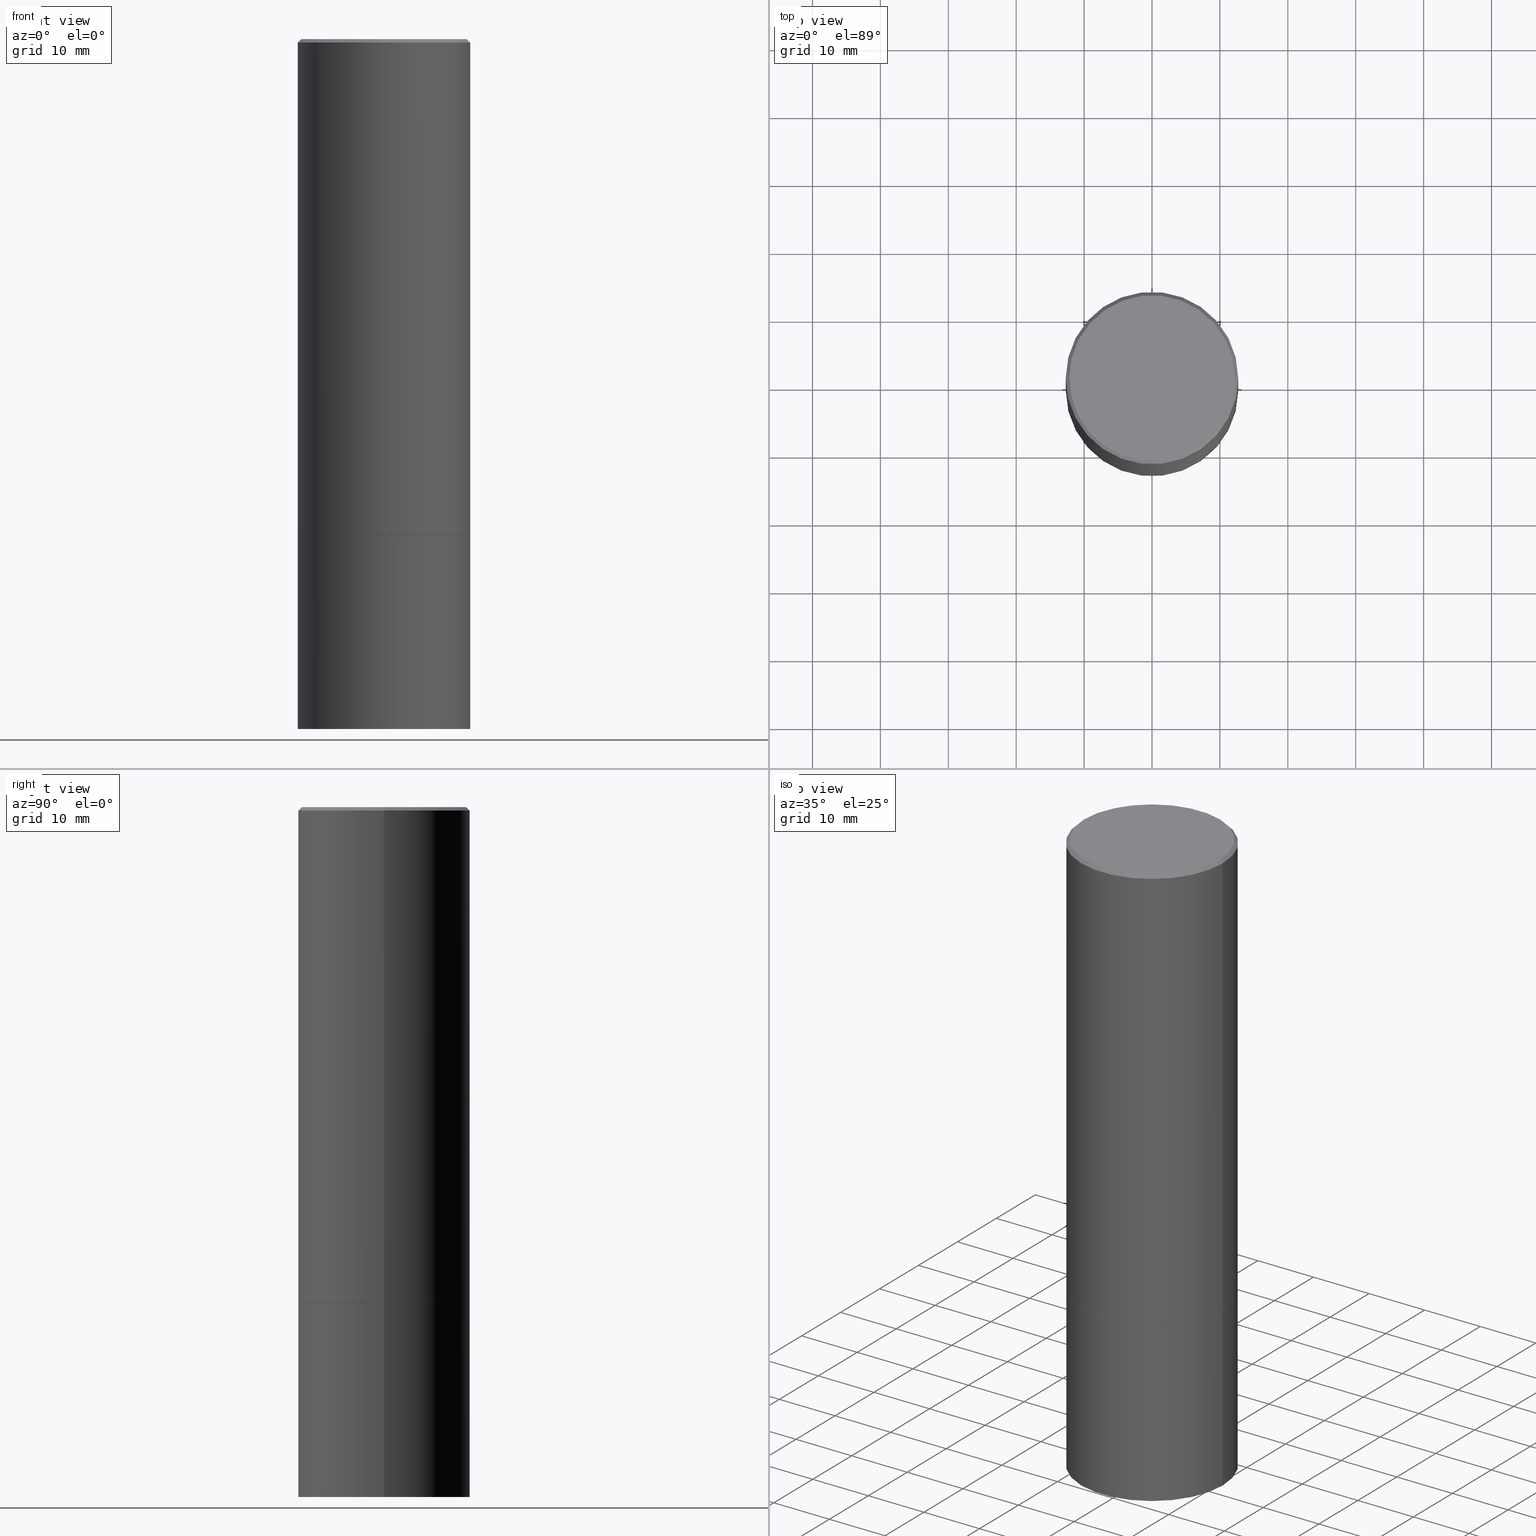
[diagram: canonical four-view strip — front | top / right | iso, engineering-drawing reading convention]
A machine part, canonical four-view strip (front | top / right | iso — engineering-drawing reading convention). The complete STEP part file that produces these views, byte-faithful:
ISO-10303-21;
HEADER;
FILE_DESCRIPTION (( 'STEP AP203' ),
    '1' );
FILE_NAME ('37288.STEP',
    '2024-02-27T21:10:12',
    ( '' ),
    ( '' ),
    'SwSTEP 2.0',
    'SolidWorks 2023',
    '' );
FILE_SCHEMA (( 'CONFIG_CONTROL_DESIGN' ));
ENDSEC;

DATA;
#1 = CARTESIAN_POINT ( 'NONE',  ( 0.4989999999999999991, -1.352250722533949203E-14, -2.875000000000000000 ) ) ;
#2 = PRODUCT_DEFINITION ( 'UNKNOWN', '', #365, #131 ) ;
#3 = AXIS2_PLACEMENT_3D ( 'NONE', #108, #102, #76 ) ;
#4 = MANIFOLD_SOLID_BREP ( 'Body-Move/Copy2[2]', #245 ) ;
#5 = CARTESIAN_POINT ( 'NONE',  ( 7.030722817782267716E-29, -1.003800884917404311E-14, -2.875000000000000000 ) ) ;
#6 = CARTESIAN_POINT ( 'NONE',  ( -0.5000000000000000000, -1.499459818505530375E-15, -2.874000000000000110 ) ) ;
#7 = COORDINATED_UNIVERSAL_TIME_OFFSET ( 5, 0, .BEHIND. ) ;
#8 = CARTESIAN_POINT ( 'NONE',  ( -0.5000000000000000000, 3.552713678800500929E-15, -2.459467545127452891E-29 ) ) ;
#9 = CC_DESIGN_PERSON_AND_ORGANIZATION_ASSIGNMENT ( #142, #62, ( #2 ) ) ;
#10 = FACE_OUTER_BOUND ( 'NONE', #211, .T. ) ;
#11 = CARTESIAN_POINT ( 'NONE',  ( 7.030722817782267716E-29, -1.003800884917404311E-14, -2.875000000000000000 ) ) ;
#12 = DIRECTION ( 'NONE',  ( 1.000000000000000000, -6.982962677686269077E-15, 0.000000000000000000 ) ) ;
#13 = VERTEX_POINT ( 'NONE', #309 ) ;
#14 = CARTESIAN_POINT ( 'NONE',  ( -3.131554243005659264E-46, 4.471029511141341874E-32, 1.280553747030123384E-17 ) ) ;
#15 = AXIS2_PLACEMENT_3D ( 'NONE', #179, #41, #42 ) ;
#16 = ORIENTED_EDGE ( 'NONE', *, *, #162, .F. ) ;
#17 = DIRECTION ( 'NONE',  ( 1.000000000000000000, -6.982962677686266711E-15, 0.000000000000000000 ) ) ;
#18 = ORIENTED_EDGE ( 'NONE', *, *, #326, .F. ) ;
#19 = DIRECTION ( 'NONE',  ( -2.445468806185136597E-29, 3.491481338843145583E-15, 1.000000000000000000 ) ) ;
#20 = EDGE_CURVE ( 'NONE', #55, #140, #256, .T. ) ;
#21 = LINE ( 'NONE', #75, #171 ) ;
#22 = ORIENTED_EDGE ( 'NONE', *, *, #272, .T. ) ;
#23 = DIRECTION ( 'NONE',  ( 2.445468806185136597E-29, -3.491481338843145583E-15, -1.000000000000000000 ) ) ;
#24 = SECURITY_CLASSIFICATION_LEVEL ( 'unclassified' ) ;
#25 = LINE ( 'NONE', #166, #220 ) ;
#26 = EDGE_CURVE ( 'NONE', #140, #33, #63, .T. ) ;
#27 = VERTEX_POINT ( 'NONE', #221 ) ;
#28 = ORIENTED_EDGE ( 'NONE', *, *, #20, .T. ) ;
#29 =( GEOMETRIC_REPRESENTATION_CONTEXT ( 3 ) GLOBAL_UNCERTAINTY_ASSIGNED_CONTEXT ( ( #355 ) ) GLOBAL_UNIT_ASSIGNED_CONTEXT ( ( #360, #357, #216 ) ) REPRESENTATION_CONTEXT ( 'NONE', 'WORKASPACE' ) );
#30 = DATE_AND_TIME ( #144, #134 ) ;
#31 = ADVANCED_FACE ( 'NONE', ( #332 ), #79, .T. ) ;
#32 = ORIENTED_EDGE ( 'NONE', *, *, #135, .F. ) ;
#33 = VERTEX_POINT ( 'NONE', #6 ) ;
#34 = CARTESIAN_POINT ( 'NONE',  ( 4.890937612370295054E-31, -6.982962677686322424E-17, -0.02000000000000009062 ) ) ;
#35 = CARTESIAN_POINT ( 'NONE',  ( 7.028277348976082113E-29, -1.003451736783520168E-14, -2.874000000000000110 ) ) ;
#36 = CARTESIAN_POINT ( 'NONE',  ( 0.4989999999999999991, -1.352250722533949203E-14, -2.875000000000000000 ) ) ;
#37 = CARTESIAN_POINT ( 'NONE',  ( 7.030722817782267716E-29, -1.003800884917404311E-14, -2.875000000000000000 ) ) ;
#38 = VECTOR ( 'NONE', #89, 39.37007874015748143 ) ;
#39 = DIRECTION ( 'NONE',  ( 1.000000000000000000, -6.982962677686266711E-15, 0.000000000000000000 ) ) ;
#40 = VECTOR ( 'NONE', #60, 39.37007874015748143 ) ;
#41 = DIRECTION ( 'NONE',  ( -2.445468806185136597E-29, 3.491481338843145583E-15, 1.000000000000000000 ) ) ;
#42 = DIRECTION ( 'NONE',  ( 1.000000000000000000, -6.982962677686266711E-15, 0.000000000000000000 ) ) ;
#43 = ADVANCED_FACE ( 'NONE', ( #118 ), #230, .T. ) ;
#44 = PERSON_AND_ORGANIZATION ( #353, #287 ) ;
#45 = CARTESIAN_POINT ( 'NONE',  ( 0.000000000000000000, 0.000000000000000000, 0.000000000000000000 ) ) ;
#46 = LOCAL_TIME ( 16, 10, 12.00000000000000000, #219 ) ;
#47 = EDGE_CURVE ( 'NONE', #174, #130, #278, .T. ) ;
#48 =( LENGTH_UNIT ( ) NAMED_UNIT ( * ) SI_UNIT ( $, .METRE. ) );
#49 = ORIENTED_EDGE ( 'NONE', *, *, #47, .F. ) ;
#50 = PERSON_AND_ORGANIZATION_ROLE ( 'creator' ) ;
#51 = CIRCLE ( 'NONE', #117, 0.4799999999999995937 ) ;
#52 = EDGE_LOOP ( 'NONE', ( #262, #249, #80, #284 ) ) ;
#53 = VECTOR ( 'NONE', #324, 39.37007874015748143 ) ;
#54 = CARTESIAN_POINT ( 'NONE',  ( 3.491481338843203169E-15, 0.4999999999999899525, -2.875000000000001332 ) ) ;
#55 = VERTEX_POINT ( 'NONE', #36 ) ;
#56 = COORDINATED_UNIVERSAL_TIME_OFFSET ( 5, 0, .BEHIND. ) ;
#57 = DIRECTION ( 'NONE',  ( 1.000000000000000000, -6.982962677686266711E-15, 4.876176775795935793E-29 ) ) ;
#58 = APPLICATION_PROTOCOL_DEFINITION ( 'international standard', 'config_control_design', 1994, #226 ) ;
#59 = DIRECTION ( 'NONE',  ( 2.438088387897960049E-29, -3.491481338843145188E-15, -1.000000000000000000 ) ) ;
#60 = DIRECTION ( 'NONE',  ( -0.7071067811865467956, 2.468850131082249172E-15, -0.7071067811865482389 ) ) ;
#61 = EDGE_CURVE ( 'NONE', #213, #130, #161, .T. ) ;
#62 = PERSON_AND_ORGANIZATION_ROLE ( 'creator' ) ;
#63 = CIRCLE ( 'NONE', #310, 0.5000000000000000000 ) ;
#64 = VECTOR ( 'NONE', #105, 39.37007874015748143 ) ;
#65 = CARTESIAN_POINT ( 'NONE',  ( 0.5000000000000000000, -1.745740669421571411E-14, -4.000000000000000000 ) ) ;
#66 = CARTESIAN_POINT ( 'NONE',  ( 0.000000000000000000, 0.000000000000000000, 0.000000000000000000 ) ) ;
#67 = DIRECTION ( 'NONE',  ( -2.445468806185136597E-29, 3.491481338843145583E-15, 1.000000000000000000 ) ) ;
#68 = DIRECTION ( 'NONE',  ( -2.445468806185136597E-29, 3.491481338843145583E-15, 1.000000000000000000 ) ) ;
#69 = DIRECTION ( 'NONE',  ( 1.000000000000000000, -6.982962677686266711E-15, 4.876036955247133327E-29 ) ) ;
#70 = EDGE_CURVE ( 'NONE', #127, #191, #84, .T. ) ;
#71 = AXIS2_PLACEMENT_3D ( 'NONE', #5, #294, #180 ) ;
#72 = CC_DESIGN_PERSON_AND_ORGANIZATION_ASSIGNMENT ( #44, #187, ( #363 ) ) ;
#73 = ORIENTED_EDGE ( 'NONE', *, *, #293, .F. ) ;
#74 = DIRECTION ( 'NONE',  ( 1.000000000000000000, -6.982962677686266711E-15, 4.876176775795935793E-29 ) ) ;
#75 = CARTESIAN_POINT ( 'NONE',  ( -0.4999999999999998335, 3.552713678800499746E-15, -2.459467545127452330E-29 ) ) ;
#76 = DIRECTION ( 'NONE',  ( 1.000000000000000000, -6.982962677686266711E-15, 0.000000000000000000 ) ) ;
#77 = APPROVAL_STATUS ( 'not_yet_approved' ) ;
#78 = AXIS2_PLACEMENT_3D ( 'NONE', #45, #210, #74 ) ;
#79 = CYLINDRICAL_SURFACE ( 'NONE', #112, 0.5000000000000000000 ) ;
#80 = ORIENTED_EDGE ( 'NONE', *, *, #162, .T. ) ;
#81 = EDGE_CURVE ( 'NONE', #13, #174, #270, .T. ) ;
#82 = APPLICATION_CONTEXT ( 'configuration controlled 3d designs of mechanical parts and assemblies' ) ;
#83 = ORIENTED_EDGE ( 'NONE', *, *, #47, .T. ) ;
#84 = CIRCLE ( 'NONE', #311, 0.4799999999999995937 ) ;
#85 = PERSON_AND_ORGANIZATION ( #353, #287 ) ;
#86 = ORIENTED_EDGE ( 'NONE', *, *, #208, .F. ) ;
#87 = ADVANCED_FACE ( 'NONE', ( #10 ), #202, .T. ) ;
#88 = ORIENTED_EDGE ( 'NONE', *, *, #119, .F. ) ;
#89 = DIRECTION ( 'NONE',  ( 0.7071067811865467956, -7.319954787623254468E-15, -0.7071067811865482389 ) ) ;
#90 = CARTESIAN_POINT ( 'NONE',  ( 0.5000000000000000000, -3.491481338843133355E-15, 2.438088387897967896E-29 ) ) ;
#91 = APPROVAL_ROLE ( '' ) ;
#92 = CIRCLE ( 'NONE', #182, 0.5000000000000000000 ) ;
#93 = DIRECTION ( 'NONE',  ( 1.000000000000000000, -6.982962677686269077E-15, 0.000000000000000000 ) ) ;
#94 = DIRECTION ( 'NONE',  ( -2.445468806185136597E-29, 3.491481338843145583E-15, 1.000000000000000000 ) ) ;
#95 = DIRECTION ( 'NONE',  ( 1.000000000000000000, -6.982962677686267499E-15, 4.876176775795936353E-29 ) ) ;
#96 = ADVANCED_FACE ( 'NONE', ( #123 ), #322, .F. ) ;
#97 = DIRECTION ( 'NONE',  ( -2.445468806185136597E-29, 3.491481338843145583E-15, 1.000000000000000000 ) ) ;
#98 = AXIS2_PLACEMENT_3D ( 'NONE', #129, #23, #327 ) ;
#99 = LENGTH_MEASURE_WITH_UNIT ( LENGTH_MEASURE( 0.02539999999999999897 ), #48 );
#100 = LOCAL_TIME ( 16, 10, 12.00000000000000000, #56 ) ;
#101 = DATE_AND_TIME ( #175, #100 ) ;
#102 = DIRECTION ( 'NONE',  ( -2.445468806185136597E-29, 3.491481338843145583E-15, 1.000000000000000000 ) ) ;
#103 = PRODUCT_RELATED_PRODUCT_CATEGORY ( 'detail', '', ( #363 ) ) ;
#104 = ORIENTED_EDGE ( 'NONE', *, *, #259, .T. ) ;
#105 = DIRECTION ( 'NONE',  ( -0.7071067811866199593, 7.493145998870616062E-15, 0.7071067811864750752 ) ) ;
#106 = AXIS2_PLACEMENT_3D ( 'NONE', #66, #297, #95 ) ;
#107 = EDGE_LOOP ( 'NONE', ( #86, #73, #223, #22 ) ) ;
#108 = CARTESIAN_POINT ( 'NONE',  ( 4.890937612370295054E-31, -6.982962677686322424E-17, -0.02000000000000009062 ) ) ;
#109 = ORIENTED_EDGE ( 'NONE', *, *, #358, .T. ) ;
#110 = ADVANCED_FACE ( 'NONE', ( #158 ), #359, .T. ) ;
#111 = PERSON_AND_ORGANIZATION ( #353, #287 ) ;
#112 = AXIS2_PLACEMENT_3D ( 'NONE', #316, #337, #57 ) ;
#113 = DIRECTION ( 'NONE',  ( -2.445468806185136597E-29, 3.491481338843145583E-15, 1.000000000000000000 ) ) ;
#114 = ORIENTED_EDGE ( 'NONE', *, *, #212, .T. ) ;
#115 = DATE_AND_TIME ( #305, #46 ) ;
#116 = DIRECTION ( 'NONE',  ( 0.7071067811866199593, -2.468850131083015945E-15, 0.7071067811864750752 ) ) ;
#117 = AXIS2_PLACEMENT_3D ( 'NONE', #14, #19, #328 ) ;
#118 = FACE_OUTER_BOUND ( 'NONE', #52, .T. ) ;
#119 = EDGE_CURVE ( 'NONE', #33, #140, #331, .T. ) ;
#120 = CARTESIAN_POINT ( 'NONE',  ( 0.000000000000000000, 0.000000000000000000, 0.000000000000000000 ) ) ;
#121 = APPROVAL_ROLE ( '' ) ;
#122 = FACE_OUTER_BOUND ( 'NONE', #107, .T. ) ;
#123 = FACE_OUTER_BOUND ( 'NONE', #288, .T. ) ;
#124 = AXIS2_PLACEMENT_3D ( 'NONE', #37, #244, #153 ) ;
#125 = ORIENTED_EDGE ( 'NONE', *, *, #283, .T. ) ;
#126 = DIRECTION ( 'NONE',  ( 2.438088387897960049E-29, -3.491481338843145188E-15, -1.000000000000000000 ) ) ;
#127 = VERTEX_POINT ( 'NONE', #181 ) ;
#128 = AXIS2_PLACEMENT_3D ( 'NONE', #350, #126, #354 ) ;
#129 = CARTESIAN_POINT ( 'NONE',  ( 4.890937612370295054E-31, -6.982962677686322424E-17, -0.02000000000000009062 ) ) ;
#130 = VERTEX_POINT ( 'NONE', #351 ) ;
#131 = DESIGN_CONTEXT ( 'detailed design', #226, 'design' ) ;
#132 = CARTESIAN_POINT ( 'NONE',  ( 0.4999999999999996669, -3.500078625662626713E-15, -0.02000000000000009062 ) ) ;
#133 = AXIS2_PLACEMENT_3D ( 'NONE', #54, #261, #228 ) ;
#134 = LOCAL_TIME ( 16, 10, 12.00000000000000000, #233 ) ;
#135 = EDGE_CURVE ( 'NONE', #27, #55, #352, .T. ) ;
#136 = PERSON_AND_ORGANIZATION ( #353, #287 ) ;
#137 = DIRECTION ( 'NONE',  ( -2.445468806185136877E-29, 3.491481338843145188E-15, 1.000000000000000000 ) ) ;
#138 = EDGE_LOOP ( 'NONE', ( #225, #125, #303, #285 ) ) ;
#139 = EDGE_CURVE ( 'NONE', #191, #307, #295, .T. ) ;
#140 = VERTEX_POINT ( 'NONE', #167 ) ;
#141 = AXIS2_PLACEMENT_3D ( 'NONE', #345, #94, #12 ) ;
#142 = PERSON_AND_ORGANIZATION ( #353, #287 ) ;
#143 = ORIENTED_EDGE ( 'NONE', *, *, #81, .T. ) ;
#144 = CALENDAR_DATE ( 2024, 27, 2 ) ;
#145 = CARTESIAN_POINT ( 'NONE',  ( 7.028277348976082113E-29, -1.003451736783520168E-14, -2.874000000000000110 ) ) ;
#146 = APPROVAL ( #77, 'UNSPECIFIED' ) ;
#147 = AXIS2_PLACEMENT_3D ( 'NONE', #120, #97, #240 ) ;
#148 = CALENDAR_DATE ( 2024, 27, 2 ) ;
#149 = PRODUCT_DEFINITION_SHAPE ( 'NONE', 'NONE',  #2 ) ;
#150 = APPROVAL_DATE_TIME ( #289, #146 ) ;
#151 = DIRECTION ( 'NONE',  ( -2.445468806185136877E-29, 3.491481338843145188E-15, 1.000000000000000000 ) ) ;
#152 = EDGE_CURVE ( 'NONE', #33, #307, #21, .T. ) ;
#153 = DIRECTION ( 'NONE',  ( 1.000000000000000000, -6.982962677686269077E-15, 0.000000000000000000 ) ) ;
#154 = EDGE_LOOP ( 'NONE', ( #237, #190 ) ) ;
#155 = AXIS2_PLACEMENT_3D ( 'NONE', #292, #319, #232 ) ;
#156 = LOCAL_TIME ( 16, 10, 12.00000000000000000, #7 ) ;
#157 = LINE ( 'NONE', #280, #64 ) ;
#158 = FACE_OUTER_BOUND ( 'NONE', #314, .T. ) ;
#159 = SHAPE_DEFINITION_REPRESENTATION ( #149, #217 ) ;
#160 = CARTESIAN_POINT ( 'NONE',  ( 0.000000000000000000, 0.000000000000000000, 0.000000000000000000 ) ) ;
#161 = LINE ( 'NONE', #90, #215 ) ;
#162 = EDGE_CURVE ( 'NONE', #140, #330, #25, .T. ) ;
#163 = EDGE_LOOP ( 'NONE', ( #109, #143, #239, #241 ) ) ;
#164 = FACE_OUTER_BOUND ( 'NONE', #306, .T. ) ;
#165 = APPROVAL_PERSON_ORGANIZATION ( #85, #170, #315 ) ;
#166 = CARTESIAN_POINT ( 'NONE',  ( 0.4999999999999998335, -3.491481338843132566E-15, 2.438088387897967336E-29 ) ) ;
#167 = CARTESIAN_POINT ( 'NONE',  ( 0.5000000000000000000, -1.352599870667833503E-14, -2.874000000000000110 ) ) ;
#168 = PERSON_AND_ORGANIZATION ( #353, #287 ) ;
#169 = AXIS2_PLACEMENT_3D ( 'NONE', #35, #235, #341 ) ;
#170 = APPROVAL ( #194, 'UNSPECIFIED' ) ;
#171 = VECTOR ( 'NONE', #137, 39.37007874015748143 ) ;
#172 = APPROVAL_PERSON_ORGANIZATION ( #334, #146, #91 ) ;
#173 = CALENDAR_DATE ( 2024, 27, 2 ) ;
#174 = VERTEX_POINT ( 'NONE', #224 ) ;
#175 = CALENDAR_DATE ( 2024, 27, 2 ) ;
#176 = CC_DESIGN_PERSON_AND_ORGANIZATION_ASSIGNMENT ( #136, #254, ( #266 ) ) ;
#177 = COORDINATED_UNIVERSAL_TIME_OFFSET ( 5, 0, .BEHIND. ) ;
#178 = CIRCLE ( 'NONE', #301, 0.5000000000000000000 ) ;
#179 = CARTESIAN_POINT ( 'NONE',  ( 7.030722817782267716E-29, -1.003800884917404311E-14, -2.875000000000000000 ) ) ;
#180 = DIRECTION ( 'NONE',  ( 1.000000000000000000, -6.982962677686269077E-15, 0.000000000000000000 ) ) ;
#181 = CARTESIAN_POINT ( 'NONE',  ( 0.4799999999999995937, -3.396558832296479732E-15, 1.280553747032483033E-17 ) ) ;
#182 = AXIS2_PLACEMENT_3D ( 'NONE', #318, #238, #348 ) ;
#183 = DIRECTION ( 'NONE',  ( -1.000000000000000000, 6.982962677686266711E-15, 0.000000000000000000 ) ) ;
#184 = APPROVAL_DATE_TIME ( #101, #170 ) ;
#185 = CARTESIAN_POINT ( 'NONE',  ( -0.4999999999999996669, 3.421651712066267691E-15, -0.02000000000000009062 ) ) ;
#186 = ADVANCED_FACE ( 'NONE', ( #361 ), #312, .F. ) ;
#187 = PERSON_AND_ORGANIZATION_ROLE ( 'design_owner' ) ;
#188 = CIRCLE ( 'NONE', #71, 0.4989999999999999991 ) ;
#189 = APPROVAL ( #267, 'UNSPECIFIED' ) ;
#190 = ORIENTED_EDGE ( 'NONE', *, *, #212, .F. ) ;
#191 = VERTEX_POINT ( 'NONE', #336 ) ;
#192 = AXIS2_PLACEMENT_3D ( 'NONE', #34, #234, #183 ) ;
#193 = ORIENTED_EDGE ( 'NONE', *, *, #326, .T. ) ;
#194 = APPROVAL_STATUS ( 'not_yet_approved' ) ;
#195 = ADVANCED_FACE ( 'NONE', ( #122 ), #335, .T. ) ;
#196 = DIRECTION ( 'NONE',  ( 1.000000000000000000, -6.982962677686266711E-15, 0.000000000000000000 ) ) ;
#197 = CARTESIAN_POINT ( 'NONE',  ( 3.491481338843230780E-15, 0.4999999999999860667, -4.000000000000001776 ) ) ;
#198 = ADVANCED_FACE ( 'NONE', ( #204 ), #269, .T. ) ;
#199 = APPROVAL_DATE_TIME ( #30, #189 ) ;
#200 = APPROVAL_PERSON_ORGANIZATION ( #339, #189, #121 ) ;
#201 = CARTESIAN_POINT ( 'NONE',  ( 0.4999999999999996669, -3.500078625662626713E-15, -0.02000000000000009062 ) ) ;
#202 = CYLINDRICAL_SURFACE ( 'NONE', #147, 0.4999999999999998335 ) ;
#203 = CARTESIAN_POINT ( 'NONE',  ( -3.131554243005659264E-46, 4.471029511141341874E-32, 1.280553747030123384E-17 ) ) ;
#204 = FACE_OUTER_BOUND ( 'NONE', #154, .T. ) ;
#205 = CARTESIAN_POINT ( 'NONE',  ( -0.4999999999999996669, 3.421651712066267691E-15, -0.02000000000000009062 ) ) ;
#206 = CLOSED_SHELL ( 'NONE', ( #31, #198, #186, #338 ) ) ;
#207 = CIRCLE ( 'NONE', #251, 0.5000000000000000000 ) ;
#208 = EDGE_CURVE ( 'NONE', #127, #330, #296, .T. ) ;
#209 = DIRECTION ( 'NONE',  ( 1.000000000000000000, 0.000000000000000000, 0.000000000000000000 ) ) ;
#210 = DIRECTION ( 'NONE',  ( -2.445468806185136597E-29, 3.491481338843145583E-15, 1.000000000000000000 ) ) ;
#211 = EDGE_LOOP ( 'NONE', ( #333, #349, #18, #16 ) ) ;
#212 = EDGE_CURVE ( 'NONE', #13, #213, #207, .T. ) ;
#213 = VERTEX_POINT ( 'NONE', #65 ) ;
#214 = VECTOR ( 'NONE', #116, 39.37007874015748143 ) ;
#215 = VECTOR ( 'NONE', #151, 39.37007874015748143 ) ;
#216 =( NAMED_UNIT ( * ) SI_UNIT ( $, .STERADIAN. ) SOLID_ANGLE_UNIT ( ) );
#217 = ADVANCED_BREP_SHAPE_REPRESENTATION ( '37288', ( #366, #4, #236 ), #29 ) ;
#218 = EDGE_CURVE ( 'NONE', #55, #27, #188, .T. ) ;
#219 = COORDINATED_UNIVERSAL_TIME_OFFSET ( 5, 0, .BEHIND. ) ;
#220 = VECTOR ( 'NONE', #222, 39.37007874015748143 ) ;
#221 = CARTESIAN_POINT ( 'NONE',  ( -0.4989999999999999991, -6.487102143382921572E-15, -2.875000000000000000 ) ) ;
#222 = DIRECTION ( 'NONE',  ( -2.445468806185136877E-29, 3.491481338843145188E-15, 1.000000000000000000 ) ) ;
#223 = ORIENTED_EDGE ( 'NONE', *, *, #139, .T. ) ;
#224 = CARTESIAN_POINT ( 'NONE',  ( -0.5000000000000000000, -8.449253423472813367E-15, -2.875000000000000000 ) ) ;
#225 = ORIENTED_EDGE ( 'NONE', *, *, #218, .T. ) ;
#226 = APPLICATION_CONTEXT ( 'configuration controlled 3d designs of mechanical parts and assemblies' ) ;
#227 = DATE_TIME_ROLE ( 'classification_date' ) ;
#228 = DIRECTION ( 'NONE',  ( -1.000000000000000000, 6.982962677686265922E-15, -4.876176775795935793E-29 ) ) ;
#229 = CIRCLE ( 'NONE', #281, 0.4999999999999996669 ) ;
#230 = CYLINDRICAL_SURFACE ( 'NONE', #106, 0.4999999999999998335 ) ;
#231 = CC_DESIGN_DATE_AND_TIME_ASSIGNMENT ( #115, #227, ( #266 ) ) ;
#232 = DIRECTION ( 'NONE',  ( 1.000000000000000000, -6.982962677686265922E-15, 4.876176775795935793E-29 ) ) ;
#233 = COORDINATED_UNIVERSAL_TIME_OFFSET ( 5, 0, .BEHIND. ) ;
#234 = DIRECTION ( 'NONE',  ( 2.445468806185136597E-29, -3.491481338843145583E-15, -1.000000000000000000 ) ) ;
#235 = DIRECTION ( 'NONE',  ( -2.445468806185136597E-29, 3.491481338843145583E-15, 1.000000000000000000 ) ) ;
#236 = AXIS2_PLACEMENT_3D ( 'NONE', #160, #274, #209 ) ;
#237 = ORIENTED_EDGE ( 'NONE', *, *, #358, .F. ) ;
#238 = DIRECTION ( 'NONE',  ( -2.445468806185136597E-29, 3.491481338843145583E-15, 1.000000000000000000 ) ) ;
#239 = ORIENTED_EDGE ( 'NONE', *, *, #259, .F. ) ;
#240 = DIRECTION ( 'NONE',  ( 1.000000000000000000, -6.982962677686267499E-15, 4.876176775795936353E-29 ) ) ;
#241 = ORIENTED_EDGE ( 'NONE', *, *, #61, .F. ) ;
#242 = CC_DESIGN_PERSON_AND_ORGANIZATION_ASSIGNMENT ( #168, #50, ( #365 ) ) ;
#243 = FACE_OUTER_BOUND ( 'NONE', #273, .T. ) ;
#244 = DIRECTION ( 'NONE',  ( -2.445468806185136597E-29, 3.491481338843145583E-15, 1.000000000000000000 ) ) ;
#245 = CLOSED_SHELL ( 'NONE', ( #255, #87, #320, #195, #43, #110, #96, #347 ) ) ;
#246 = AXIS2_PLACEMENT_3D ( 'NONE', #197, #59, #340 ) ;
#247 = CC_DESIGN_APPROVAL ( #146, ( #2 ) ) ;
#248 = CYLINDRICAL_SURFACE ( 'NONE', #78, 0.5000000000000000000 ) ;
#249 = ORIENTED_EDGE ( 'NONE', *, *, #119, .T. ) ;
#250 = DIMENSIONAL_EXPONENTS ( 1.000000000000000000, 0.000000000000000000, 0.000000000000000000, 0.000000000000000000, 0.000000000000000000, 0.000000000000000000, 0.000000000000000000 ) ;
#251 = AXIS2_PLACEMENT_3D ( 'NONE', #263, #323, #317 ) ;
#252 = PLANE ( 'NONE',  #128 ) ;
#253 = ORIENTED_EDGE ( 'NONE', *, *, #70, .T. ) ;
#254 = PERSON_AND_ORGANIZATION_ROLE ( 'classification_officer' ) ;
#255 = ADVANCED_FACE ( 'NONE', ( #343 ), #364, .T. ) ;
#256 = LINE ( 'NONE', #1, #214 ) ;
#257 = AXIS2_PLACEMENT_3D ( 'NONE', #11, #67, #93 ) ;
#258 = ORIENTED_EDGE ( 'NONE', *, *, #81, .F. ) ;
#259 = EDGE_CURVE ( 'NONE', #130, #174, #92, .T. ) ;
#260 = DATE_AND_TIME ( #148, #313 ) ;
#261 = DIRECTION ( 'NONE',  ( 2.438088387897960049E-29, -3.491481338843145188E-15, -1.000000000000000000 ) ) ;
#262 = ORIENTED_EDGE ( 'NONE', *, *, #152, .F. ) ;
#263 = CARTESIAN_POINT ( 'NONE',  ( 9.781875224740546387E-29, -1.396592535537258233E-14, -4.000000000000000000 ) ) ;
#264 = CONICAL_SURFACE ( 'NONE', #98, 0.4999999999999996669, 0.7853981633974472798 ) ;
#265 = ORIENTED_EDGE ( 'NONE', *, *, #293, .T. ) ;
#266 = SECURITY_CLASSIFICATION ( '', '', #24 ) ;
#267 = APPROVAL_STATUS ( 'not_yet_approved' ) ;
#268 = ORIENTED_EDGE ( 'NONE', *, *, #283, .F. ) ;
#269 = PLANE ( 'NONE',  #246 ) ;
#270 = LINE ( 'NONE', #8, #53 ) ;
#271 = ORIENTED_EDGE ( 'NONE', *, *, #70, .F. ) ;
#272 = EDGE_CURVE ( 'NONE', #307, #330, #229, .T. ) ;
#273 = EDGE_LOOP ( 'NONE', ( #271, #291, #193, #298 ) ) ;
#274 = DIRECTION ( 'NONE',  ( 0.000000000000000000, 0.000000000000000000, 1.000000000000000000 ) ) ;
#275 = DIRECTION ( 'NONE',  ( -2.445468806185136597E-29, 3.491481338843145583E-15, 1.000000000000000000 ) ) ;
#276 = ORIENTED_EDGE ( 'NONE', *, *, #61, .T. ) ;
#277 = CARTESIAN_POINT ( 'NONE',  ( 9.781875224740546387E-29, -1.396592535537258233E-14, -4.000000000000000000 ) ) ;
#278 = CIRCLE ( 'NONE', #15, 0.5000000000000000000 ) ;
#279 = DIRECTION ( 'NONE',  ( -2.445468806185136597E-29, 3.491481338843145583E-15, 1.000000000000000000 ) ) ;
#280 = CARTESIAN_POINT ( 'NONE',  ( -0.4989999999999999991, -6.492400597731143185E-15, -2.875000000000000000 ) ) ;
#281 = AXIS2_PLACEMENT_3D ( 'NONE', #321, #68, #39 ) ;
#282 = PERSON_AND_ORGANIZATION_ROLE ( 'design_supplier' ) ;
#283 = EDGE_CURVE ( 'NONE', #27, #33, #157, .T. ) ;
#284 = ORIENTED_EDGE ( 'NONE', *, *, #272, .F. ) ;
#285 = ORIENTED_EDGE ( 'NONE', *, *, #20, .F. ) ;
#286 = EDGE_LOOP ( 'NONE', ( #258, #114, #276, #49 ) ) ;
#287 = ORGANIZATION ( 'UNSPECIFIED', 'UNSPECIFIED', '' ) ;
#288 = EDGE_LOOP ( 'NONE', ( #329, #32 ) ) ;
#289 = DATE_AND_TIME ( #173, #156 ) ;
#290 = CC_DESIGN_APPROVAL ( #170, ( #266 ) ) ;
#291 = ORIENTED_EDGE ( 'NONE', *, *, #208, .T. ) ;
#292 = CARTESIAN_POINT ( 'NONE',  ( 7.030722817782267716E-29, -1.003800884917404311E-14, -2.875000000000000000 ) ) ;
#293 = EDGE_CURVE ( 'NONE', #191, #127, #51, .T. ) ;
#294 = DIRECTION ( 'NONE',  ( -2.445468806185136597E-29, 3.491481338843145583E-15, 1.000000000000000000 ) ) ;
#295 = LINE ( 'NONE', #205, #40 ) ;
#296 = LINE ( 'NONE', #201, #38 ) ;
#297 = DIRECTION ( 'NONE',  ( -2.445468806185136597E-29, 3.491481338843145583E-15, 1.000000000000000000 ) ) ;
#298 = ORIENTED_EDGE ( 'NONE', *, *, #139, .F. ) ;
#299 = CC_DESIGN_PERSON_AND_ORGANIZATION_ASSIGNMENT ( #111, #282, ( #365 ) ) ;
#300 = FACE_OUTER_BOUND ( 'NONE', #286, .T. ) ;
#301 = AXIS2_PLACEMENT_3D ( 'NONE', #277, #279, #17 ) ;
#302 = MECHANICAL_CONTEXT ( 'NONE', #82, 'mechanical' ) ;
#303 = ORIENTED_EDGE ( 'NONE', *, *, #26, .F. ) ;
#304 = CC_DESIGN_SECURITY_CLASSIFICATION ( #266, ( #365 ) ) ;
#305 = CALENDAR_DATE ( 2024, 27, 2 ) ;
#306 = EDGE_LOOP ( 'NONE', ( #265, #253 ) ) ;
#307 = VERTEX_POINT ( 'NONE', #185 ) ;
#308 = CC_DESIGN_DATE_AND_TIME_ASSIGNMENT ( #260, #342, ( #2 ) ) ;
#309 = CARTESIAN_POINT ( 'NONE',  ( -0.5000000000000000000, -8.449253423472813367E-15, -4.000000000000000000 ) ) ;
#310 = AXIS2_PLACEMENT_3D ( 'NONE', #145, #113, #196 ) ;
#311 = AXIS2_PLACEMENT_3D ( 'NONE', #203, #275, #69 ) ;
#312 = PLANE ( 'NONE',  #133 ) ;
#313 = LOCAL_TIME ( 16, 10, 12.00000000000000000, #177 ) ;
#314 = EDGE_LOOP ( 'NONE', ( #268, #356, #28, #88 ) ) ;
#315 = APPROVAL_ROLE ( '' ) ;
#316 = CARTESIAN_POINT ( 'NONE',  ( 0.000000000000000000, 0.000000000000000000, 0.000000000000000000 ) ) ;
#317 = DIRECTION ( 'NONE',  ( 1.000000000000000000, -6.982962677686266711E-15, 0.000000000000000000 ) ) ;
#318 = CARTESIAN_POINT ( 'NONE',  ( 7.030722817782267716E-29, -1.003800884917404311E-14, -2.875000000000000000 ) ) ;
#319 = DIRECTION ( 'NONE',  ( -2.438088387897960049E-29, 3.491481338843145188E-15, 1.000000000000000000 ) ) ;
#320 = ADVANCED_FACE ( 'NONE', ( #243 ), #264, .T. ) ;
#321 = CARTESIAN_POINT ( 'NONE',  ( 4.890937612370295054E-31, -6.982962677686322424E-17, -0.02000000000000009062 ) ) ;
#322 = PLANE ( 'NONE',  #155 ) ;
#323 = DIRECTION ( 'NONE',  ( -2.445468806185136597E-29, 3.491481338843145583E-15, 1.000000000000000000 ) ) ;
#324 = DIRECTION ( 'NONE',  ( -2.445468806185136877E-29, 3.491481338843145188E-15, 1.000000000000000000 ) ) ;
#325 = APPLICATION_PROTOCOL_DEFINITION ( 'international standard', 'config_control_design', 1994, #82 ) ;
#326 = EDGE_CURVE ( 'NONE', #330, #307, #344, .T. ) ;
#327 = DIRECTION ( 'NONE',  ( -1.000000000000000000, 6.982962677686266711E-15, 0.000000000000000000 ) ) ;
#328 = DIRECTION ( 'NONE',  ( 1.000000000000000000, -6.982962677686266711E-15, 4.876036955247133327E-29 ) ) ;
#329 = ORIENTED_EDGE ( 'NONE', *, *, #218, .F. ) ;
#330 = VERTEX_POINT ( 'NONE', #132 ) ;
#331 = CIRCLE ( 'NONE', #169, 0.5000000000000000000 ) ;
#332 = FACE_OUTER_BOUND ( 'NONE', #163, .T. ) ;
#333 = ORIENTED_EDGE ( 'NONE', *, *, #26, .T. ) ;
#334 = PERSON_AND_ORGANIZATION ( #353, #287 ) ;
#335 = CONICAL_SURFACE ( 'NONE', #192, 0.4999999999999996669, 0.7853981633974472798 ) ;
#336 = CARTESIAN_POINT ( 'NONE',  ( -0.4799999999999995937, 3.386736898677836436E-15, 1.280553747027767124E-17 ) ) ;
#337 = DIRECTION ( 'NONE',  ( -2.445468806185136597E-29, 3.491481338843145583E-15, 1.000000000000000000 ) ) ;
#338 = ADVANCED_FACE ( 'NONE', ( #300 ), #248, .T. ) ;
#339 = PERSON_AND_ORGANIZATION ( #353, #287 ) ;
#340 = DIRECTION ( 'NONE',  ( -1.000000000000000000, 6.982962677686265922E-15, -4.876176775795935793E-29 ) ) ;
#341 = DIRECTION ( 'NONE',  ( 1.000000000000000000, -6.982962677686266711E-15, 0.000000000000000000 ) ) ;
#342 = DATE_TIME_ROLE ( 'creation_date' ) ;
#343 = FACE_OUTER_BOUND ( 'NONE', #138, .T. ) ;
#344 = CIRCLE ( 'NONE', #3, 0.4999999999999996669 ) ;
#345 = CARTESIAN_POINT ( 'NONE',  ( 7.030722817782267716E-29, -1.003800884917404311E-14, -2.875000000000000000 ) ) ;
#346 = CC_DESIGN_APPROVAL ( #189, ( #365 ) ) ;
#347 = ADVANCED_FACE ( 'NONE', ( #164 ), #252, .F. ) ;
#348 = DIRECTION ( 'NONE',  ( 1.000000000000000000, -6.982962677686266711E-15, 0.000000000000000000 ) ) ;
#349 = ORIENTED_EDGE ( 'NONE', *, *, #152, .T. ) ;
#350 = CARTESIAN_POINT ( 'NONE',  ( 3.351822085289404787E-15, 0.4799999999999995937, -1.669508273909557867E-15 ) ) ;
#351 = CARTESIAN_POINT ( 'NONE',  ( 0.5000000000000000000, -1.352949018801717646E-14, -2.875000000000000000 ) ) ;
#352 = CIRCLE ( 'NONE', #141, 0.4989999999999999991 ) ;
#353 = PERSON ( 'UNSPECIFIED', 'UNSPECIFIED', 'UNSPECIFIED', ('UNSPECIFIED'), ('UNSPECIFIED'), ('UNSPECIFIED') ) ;
#354 = DIRECTION ( 'NONE',  ( -1.000000000000000000, 6.982962677686265922E-15, -4.876176775795935793E-29 ) ) ;
#355 = UNCERTAINTY_MEASURE_WITH_UNIT (LENGTH_MEASURE( 1.000000000000000082E-05 ), #360, 'distance_accuracy_value', 'NONE');
#356 = ORIENTED_EDGE ( 'NONE', *, *, #135, .T. ) ;
#357 =( NAMED_UNIT ( * ) PLANE_ANGLE_UNIT ( ) SI_UNIT ( $, .RADIAN. ) );
#358 = EDGE_CURVE ( 'NONE', #213, #13, #178, .T. ) ;
#359 = CONICAL_SURFACE ( 'NONE', #124, 0.4989999999999999991, 0.7853981633975507526 ) ;
#360 =( CONVERSION_BASED_UNIT ( 'INCH', #99 ) LENGTH_UNIT ( ) NAMED_UNIT ( #250 ) );
#361 = FACE_OUTER_BOUND ( 'NONE', #362, .T. ) ;
#362 = EDGE_LOOP ( 'NONE', ( #104, #83 ) ) ;
#363 = PRODUCT ( '37288', '37288', '', ( #302 ) ) ;
#364 = CONICAL_SURFACE ( 'NONE', #257, 0.4989999999999999991, 0.7853981633975507526 ) ;
#365 = PRODUCT_DEFINITION_FORMATION_WITH_SPECIFIED_SOURCE ( 'ANY', '', #363, .NOT_KNOWN. ) ;
#366 = MANIFOLD_SOLID_BREP ( 'Body-Move/Copy2[1]', #206 ) ;
ENDSEC;
END-ISO-10303-21;
